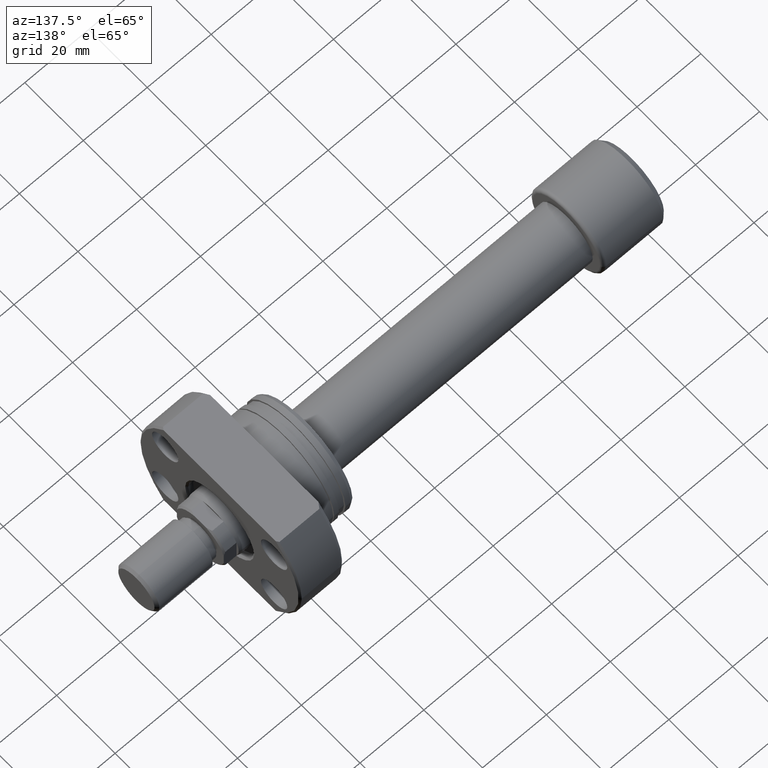
[diagram: clean part render]
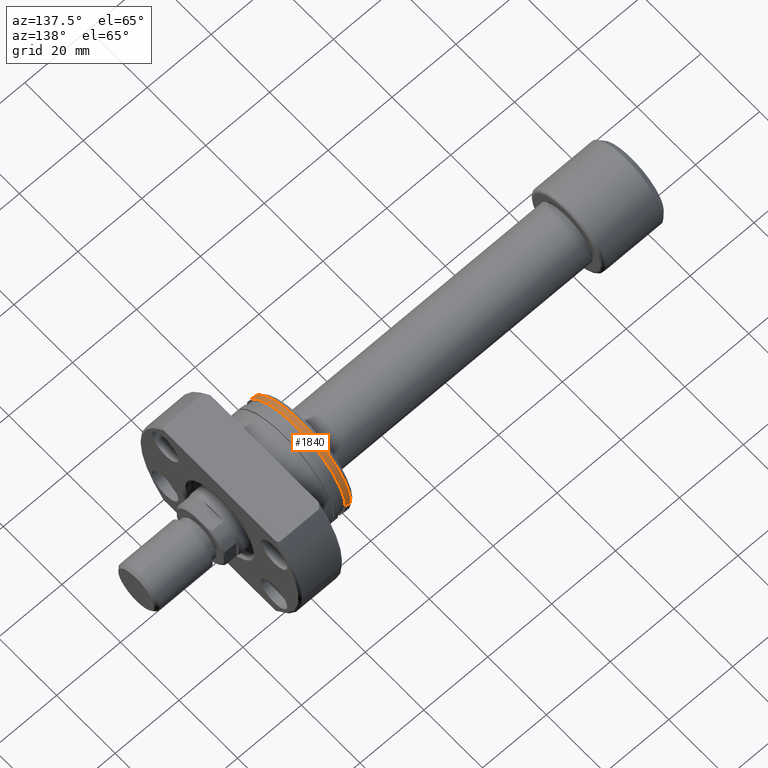
[diagram: same view with one face highlighted and labeled with its STEP entity id]
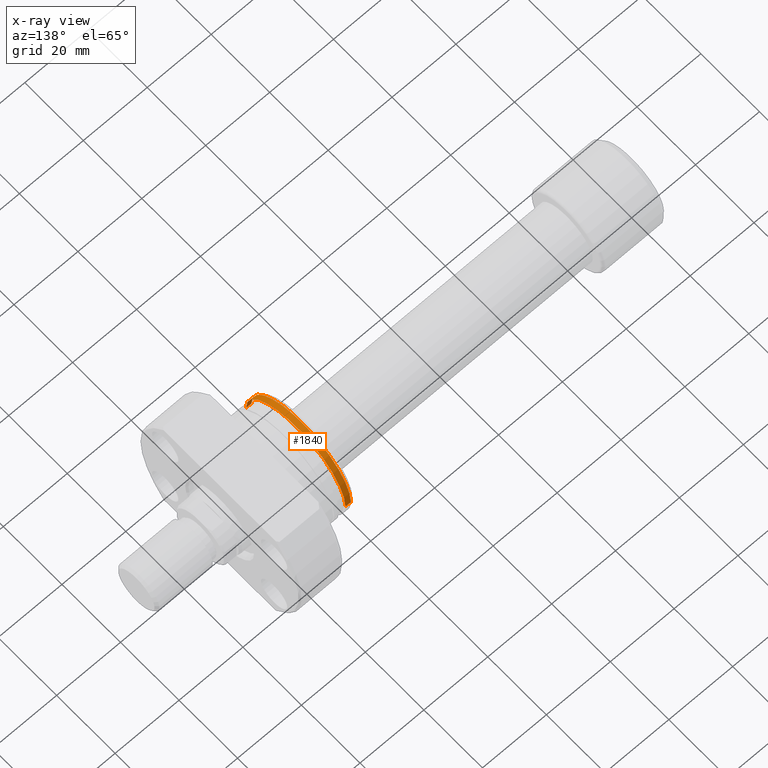
[diagram: x-ray of the same camera — body ghosted, the highlighted face saturated]
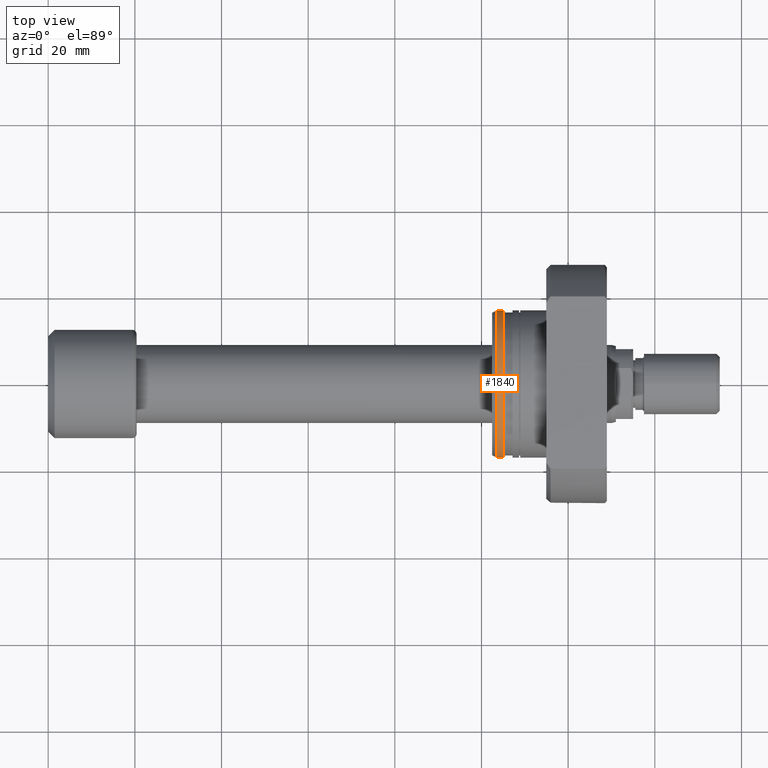
[diagram: same view with one face highlighted and labeled with its STEP entity id]
A machine part, auxiliary view. The second image highlights one B-rep face of the part: STEP entity #1840.
The next image is the same camera in x-ray: the body ghosted, the highlighted face saturated — about 0% of this face is hidden behind the body in this view.
A second angle (top view) of the same face is appended — the face is thin or edge-on in the first view.
In plain terms, the highlighted cylindrical surface (partial cylindrical patch) has radius 17 mm, axis along (1, 0, 0).
Its self-contained STEP definition (entity closure, byte-faithful):
#20 = CYLINDRICAL_SURFACE ( 'NONE', #857, 16.99999999999999645 ) ;
#269 = VECTOR ( 'NONE', #3479, 1000.000000000000000 ) ;
#310 = FACE_OUTER_BOUND ( 'NONE', #1470, .T. ) ;
#324 = DIRECTION ( 'NONE',  ( 0.000000000000000000, 1.000000000000000000, 0.000000000000000000 ) ) ;
#460 = DIRECTION ( 'NONE',  ( 1.000000000000000000, 9.242617352055502386E-18, -0.000000000000000000 ) ) ;
#765 = CARTESIAN_POINT ( 'NONE',  ( 26.50000000000000711, 16.99999999999999645, 0.000000000000000000 ) ) ;
#857 = AXIS2_PLACEMENT_3D ( 'NONE', #877, #2013, #324 ) ;
#877 = CARTESIAN_POINT ( 'NONE',  ( 26.50000000000000711, 2.449293598294708880E-16, 0.000000000000000000 ) ) ;
#937 = VERTEX_POINT ( 'NONE', #1168 ) ;
#1012 = DIRECTION ( 'NONE',  ( 0.000000000000000000, 1.000000000000000000, 0.000000000000000000 ) ) ;
#1168 = CARTESIAN_POINT ( 'NONE',  ( 2.699999999999786127, 16.99999999999999645, 0.000000000000000000 ) ) ;
#1290 = EDGE_CURVE ( 'NONE', #937, #2477, #2821, .T. ) ;
#1297 = DIRECTION ( 'NONE',  ( -1.275531967630005461E-17, 1.000000000000000000, 0.000000000000000000 ) ) ;
#1311 = DIRECTION ( 'NONE',  ( 1.000000000000000000, 9.242617352055502386E-18, -0.000000000000000000 ) ) ;
#1438 = CIRCLE ( 'NONE', #2744, 16.99999999999999645 ) ;
#1470 = EDGE_LOOP ( 'NONE', ( #2618, #1826, #3330, #2032 ) ) ;
#1499 = EDGE_CURVE ( 'NONE', #3056, #2507, #1438, .T. ) ;
#1626 = AXIS2_PLACEMENT_3D ( 'NONE', #3212, #3600, #1012 ) ;
#1805 = VECTOR ( 'NONE', #1311, 1000.000000000000000 ) ;
#1826 = ORIENTED_EDGE ( 'NONE', *, *, #1889, .T. ) ;
#1832 = CARTESIAN_POINT ( 'NONE',  ( 0.9999999999997859490, -16.99999999999999645, 2.081899558550499885E-15 ) ) ;
#1840 = ADVANCED_FACE ( 'NONE', ( #310 ), #20, .T. ) ;
#1889 = EDGE_CURVE ( 'NONE', #2507, #2477, #3460, .T. ) ;
#2013 = DIRECTION ( 'NONE',  ( 1.000000000000000000, 9.242617352055502386E-18, -0.000000000000000000 ) ) ;
#2029 = CARTESIAN_POINT ( 'NONE',  ( 0.9999999999997856159, 16.99999999999999645, 0.000000000000000000 ) ) ;
#2032 = ORIENTED_EDGE ( 'NONE', *, *, #2707, .F. ) ;
#2477 = VERTEX_POINT ( 'NONE', #2912 ) ;
#2507 = VERTEX_POINT ( 'NONE', #1832 ) ;
#2618 = ORIENTED_EDGE ( 'NONE', *, *, #1499, .T. ) ;
#2707 = EDGE_CURVE ( 'NONE', #3056, #937, #3045, .T. ) ;
#2744 = AXIS2_PLACEMENT_3D ( 'NONE', #3269, #460, #1297 ) ;
#2821 = CIRCLE ( 'NONE', #1626, 16.99999999999999645 ) ;
#2904 = CARTESIAN_POINT ( 'NONE',  ( 26.50000000000000711, -16.99999999999999645, 2.081899558550499885E-15 ) ) ;
#2912 = CARTESIAN_POINT ( 'NONE',  ( 2.699999999999786127, -16.99999999999999645, 2.081899558550499885E-15 ) ) ;
#3045 = LINE ( 'NONE', #765, #1805 ) ;
#3056 = VERTEX_POINT ( 'NONE', #2029 ) ;
#3212 = CARTESIAN_POINT ( 'NONE',  ( 2.699999999999786127, 2.495506685054785763E-17, 0.000000000000000000 ) ) ;
#3269 = CARTESIAN_POINT ( 'NONE',  ( 0.9999999999997857270, 9.242617352053524071E-18, 0.000000000000000000 ) ) ;
#3330 = ORIENTED_EDGE ( 'NONE', *, *, #1290, .F. ) ;
#3460 = LINE ( 'NONE', #2904, #269 ) ;
#3479 = DIRECTION ( 'NONE',  ( 1.000000000000000000, 9.242617352055502386E-18, -0.000000000000000000 ) ) ;
#3600 = DIRECTION ( 'NONE',  ( 1.000000000000000000, 9.242617352055502386E-18, -0.000000000000000000 ) ) ;